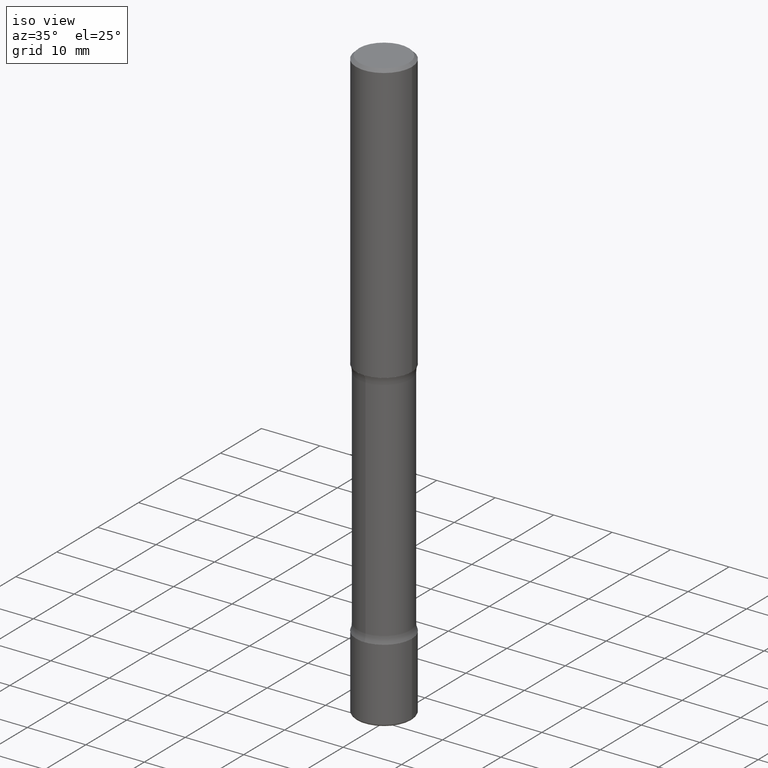
[diagram: clean part render]
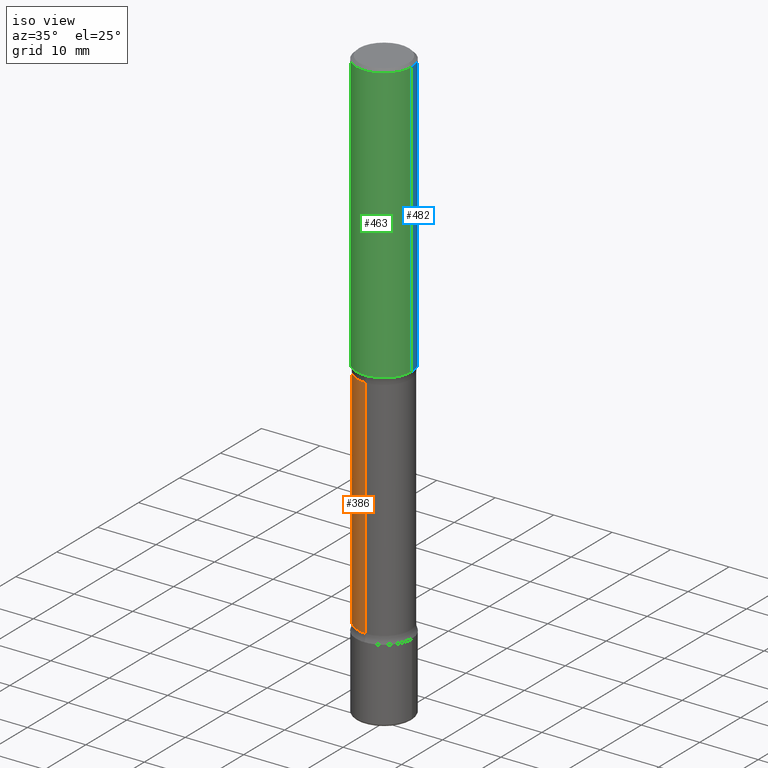
[diagram: same view with three faces highlighted in distinct colors, each labeled with its STEP entity id]
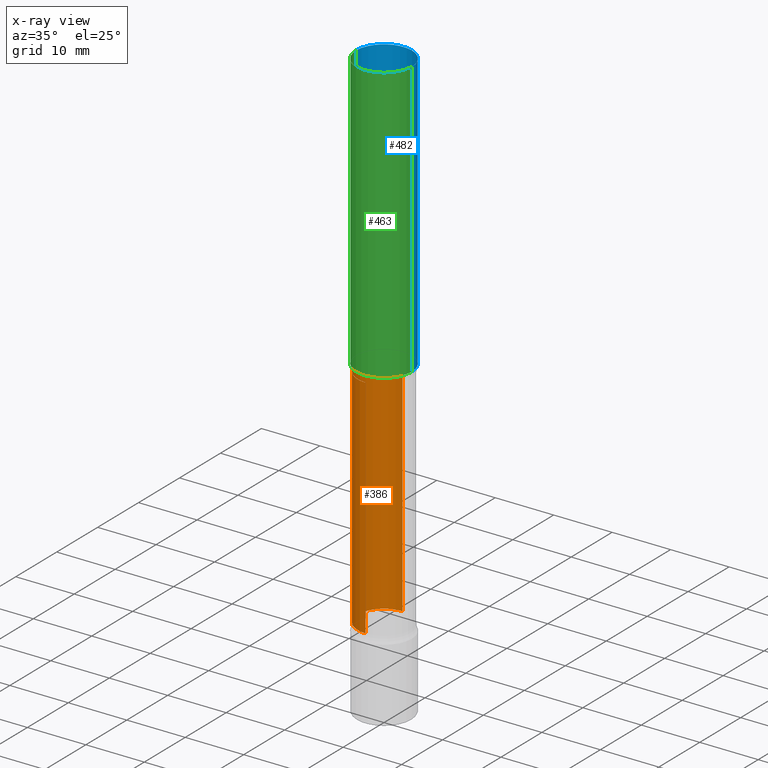
[diagram: x-ray of the same camera — body ghosted, the three highlighted faces saturated]
A machine part, iso view with three faces highlighted in distinct colors.
The next image is the same camera in x-ray (body ghosted, the three faces saturated) — at least one of them is partly hidden behind the body in this view.
Their STEP definitions:

[orange] entity #386 — the highlighted cylindrical surface (edge-blend (fillet) strip) has radius 4.5085 mm, axis along (0, -0, -1).
#5 = EDGE_CURVE ( 'NONE', #248, #14, #41, .T. ) ;
#14 = VERTEX_POINT ( 'NONE', #128 ) ;
#25 = LINE ( 'NONE', #58, #299 ) ;
#26 = ORIENTED_EDGE ( 'NONE', *, *, #5, .T. ) ;
#31 = VECTOR ( 'NONE', #87, 39.37007874015748143 ) ;
#41 = CIRCLE ( 'NONE', #177, 0.1775000000000003242 ) ;
#45 = LINE ( 'NONE', #218, #31 ) ;
#47 = DIRECTION ( 'NONE',  ( 2.612387241267746127E-29, -3.252444639397522477E-15, -1.000000000000000000 ) ) ;
#58 = CARTESIAN_POINT ( 'NONE',  ( 1.239475875289412093E-15, 0.1774999999999863354, -4.000000000000000888 ) ) ;
#75 = VERTEX_POINT ( 'NONE', #533 ) ;
#87 = DIRECTION ( 'NONE',  ( 2.612387241267746127E-29, -3.252444639397522083E-15, -1.000000000000000000 ) ) ;
#106 = DIRECTION ( 'NONE',  ( 2.612387241267746127E-29, -3.252444639397522083E-15, -1.000000000000000000 ) ) ;
#124 = ORIENTED_EDGE ( 'NONE', *, *, #152, .F. ) ;
#128 = CARTESIAN_POINT ( 'NONE',  ( 1.239475875289358844E-15, 0.1774999999999932188, -1.923989794855664126 ) ) ;
#139 = AXIS2_PLACEMENT_3D ( 'NONE', #270, #283, #465 ) ;
#152 = EDGE_CURVE ( 'NONE', #75, #429, #288, .T. ) ;
#167 = CARTESIAN_POINT ( 'NONE',  ( 4.441991869621149927E-29, -7.094298742593522572E-15, -1.923989794855663460 ) ) ;
#172 = CARTESIAN_POINT ( 'NONE',  ( 8.431160506614718513E-29, -1.206084809028752233E-14, -3.451010205144336762 ) ) ;
#177 = AXIS2_PLACEMENT_3D ( 'NONE', #167, #352, #251 ) ;
#179 = CARTESIAN_POINT ( 'NONE',  ( 1.239475875289396118E-15, 0.1774999999999878897, -3.451010205144337206 ) ) ;
#180 = AXIS2_PLACEMENT_3D ( 'NONE', #172, #47, #314 ) ;
#218 = CARTESIAN_POINT ( 'NONE',  ( -1.217738394604349018E-15, -0.1775000000000139799, -4.000000000000000000 ) ) ;
#239 = EDGE_CURVE ( 'NONE', #248, #75, #45, .T. ) ;
#248 = VERTEX_POINT ( 'NONE', #257 ) ;
#251 = DIRECTION ( 'NONE',  ( 6.982962677686265133E-15, 1.000000000000000000, -3.078138584410432002E-15 ) ) ;
#257 = CARTESIAN_POINT ( 'NONE',  ( -1.252040884593263284E-15, -0.1775000000000074296, -1.923989794855663016 ) ) ;
#270 = CARTESIAN_POINT ( 'NONE',  ( 9.865334442281852273E-29, -1.384640700564977196E-14, -4.000000000000000888 ) ) ;
#271 = EDGE_LOOP ( 'NONE', ( #287, #26, #336, #124 ) ) ;
#283 = DIRECTION ( 'NONE',  ( 2.612387241267746127E-29, -3.252444639397522477E-15, -1.000000000000000000 ) ) ;
#287 = ORIENTED_EDGE ( 'NONE', *, *, #239, .F. ) ;
#288 = CIRCLE ( 'NONE', #180, 0.1774999999999999634 ) ;
#299 = VECTOR ( 'NONE', #106, 39.37007874015748143 ) ;
#314 = DIRECTION ( 'NONE',  ( 6.982962677686265922E-15, 1.000000000000000000, -3.078138584410437918E-15 ) ) ;
#322 = FACE_OUTER_BOUND ( 'NONE', #271, .T. ) ;
#336 = ORIENTED_EDGE ( 'NONE', *, *, #363, .T. ) ;
#352 = DIRECTION ( 'NONE',  ( 2.612387241267746127E-29, -3.252444639397522477E-15, -1.000000000000000000 ) ) ;
#363 = EDGE_CURVE ( 'NONE', #14, #429, #25, .T. ) ;
#386 = ADVANCED_FACE ( 'NONE', ( #322 ), #493, .T. ) ;
#429 = VERTEX_POINT ( 'NONE', #179 ) ;
#465 = DIRECTION ( 'NONE',  ( 6.982962677686266711E-15, 1.000000000000000000, -3.078138584410434763E-15 ) ) ;
#493 = CYLINDRICAL_SURFACE ( 'NONE', #139, 0.1775000000000001577 ) ;
#533 = CARTESIAN_POINT ( 'NONE',  ( -1.252040884593219502E-15, -0.1775000000000120093, -3.451010205144335874 ) ) ;

[blue] entity #482 — the highlighted cylindrical surface (edge-blend (fillet) strip) has radius 4.7625 mm, axis along (-0, 0, 1).
#4 = DIRECTION ( 'NONE',  ( -2.445468806185136597E-29, 3.491481338843145583E-15, 1.000000000000000000 ) ) ;
#8 = LINE ( 'NONE', #174, #49 ) ;
#11 = CIRCLE ( 'NONE', #415, 0.1875000000000001943 ) ;
#42 = ORIENTED_EDGE ( 'NONE', *, *, #249, .F. ) ;
#49 = VECTOR ( 'NONE', #212, 39.37007874015748143 ) ;
#64 = CIRCLE ( 'NONE', #156, 0.1874999999999999722 ) ;
#66 = DIRECTION ( 'NONE',  ( -2.445468806185136877E-29, 3.491481338843145188E-15, 1.000000000000000000 ) ) ;
#76 = CARTESIAN_POINT ( 'NONE',  ( -0.1875000000000001388, -1.975910939003690393E-15, -1.874999999999999778 ) ) ;
#103 = ORIENTED_EDGE ( 'NONE', *, *, #211, .F. ) ;
#126 = ORIENTED_EDGE ( 'NONE', *, *, #181, .T. ) ;
#156 = AXIS2_PLACEMENT_3D ( 'NONE', #484, #311, #255 ) ;
#163 = CYLINDRICAL_SURFACE ( 'NONE', #468, 0.1875000000000000833 ) ;
#174 = CARTESIAN_POINT ( 'NONE',  ( 0.1875000000000000833, -1.309305502066175600E-15, 9.142831454617383816E-30 ) ) ;
#181 = EDGE_CURVE ( 'NONE', #504, #479, #11, .T. ) ;
#202 = CARTESIAN_POINT ( 'NONE',  ( 0.000000000000000000, 0.000000000000000000, 0.000000000000000000 ) ) ;
#211 = EDGE_CURVE ( 'NONE', #265, #380, #64, .T. ) ;
#212 = DIRECTION ( 'NONE',  ( -2.445468806185136877E-29, 3.491481338843145188E-15, 1.000000000000000000 ) ) ;
#220 = CARTESIAN_POINT ( 'NONE',  ( 4.585254011597130558E-29, -6.546527510330897918E-15, -1.874999999999999778 ) ) ;
#228 = CARTESIAN_POINT ( 'NONE',  ( -0.1874999999999999722, 1.239475875289311710E-15, -0.02000000000000004205 ) ) ;
#249 = EDGE_CURVE ( 'NONE', #504, #265, #8, .T. ) ;
#250 = DIRECTION ( 'NONE',  ( 1.000000000000000000, -6.982962677686266711E-15, 4.876176775795935793E-29 ) ) ;
#255 = DIRECTION ( 'NONE',  ( 1.000000000000000000, -6.982962677686266711E-15, 0.000000000000000000 ) ) ;
#265 = VERTEX_POINT ( 'NONE', #402 ) ;
#294 = EDGE_CURVE ( 'NONE', #479, #380, #456, .T. ) ;
#311 = DIRECTION ( 'NONE',  ( -2.445468806185136597E-29, 3.491481338843145583E-15, 1.000000000000000000 ) ) ;
#329 = CARTESIAN_POINT ( 'NONE',  ( -0.1875000000000000833, 1.332267629550188440E-15, -9.223003294227952194E-30 ) ) ;
#347 = VECTOR ( 'NONE', #66, 39.37007874015748143 ) ;
#368 = DIRECTION ( 'NONE',  ( 1.000000000000000000, -6.982962677686265922E-15, 0.000000000000000000 ) ) ;
#380 = VERTEX_POINT ( 'NONE', #228 ) ;
#393 = FACE_OUTER_BOUND ( 'NONE', #501, .T. ) ;
#402 = CARTESIAN_POINT ( 'NONE',  ( 0.1874999999999999722, -1.356173001359025269E-15, -0.02000000000000004205 ) ) ;
#415 = AXIS2_PLACEMENT_3D ( 'NONE', #220, #4, #368 ) ;
#456 = LINE ( 'NONE', #329, #347 ) ;
#468 = AXIS2_PLACEMENT_3D ( 'NONE', #202, #551, #250 ) ;
#479 = VERTEX_POINT ( 'NONE', #76 ) ;
#482 = ADVANCED_FACE ( 'NONE', ( #393 ), #163, .T. ) ;
#484 = CARTESIAN_POINT ( 'NONE',  ( 4.890937612370283668E-31, -6.982962677686305168E-17, -0.02000000000000004205 ) ) ;
#501 = EDGE_LOOP ( 'NONE', ( #126, #528, #103, #42 ) ) ;
#504 = VERTEX_POINT ( 'NONE', #553 ) ;
#528 = ORIENTED_EDGE ( 'NONE', *, *, #294, .T. ) ;
#551 = DIRECTION ( 'NONE',  ( -2.445468806185136597E-29, 3.491481338843145583E-15, 1.000000000000000000 ) ) ;
#553 = CARTESIAN_POINT ( 'NONE',  ( 0.1875000000000001943, -7.855833012397073715E-15, -1.874999999999999778 ) ) ;

[green] entity #463 — the highlighted cylindrical surface (edge-blend (fillet) strip) has radius 4.7625 mm, axis along (-0, 0, 1).
#8 = LINE ( 'NONE', #174, #49 ) ;
#37 = CARTESIAN_POINT ( 'NONE',  ( 4.890937612370283668E-31, -6.982962677686305168E-17, -0.02000000000000004205 ) ) ;
#49 = VECTOR ( 'NONE', #212, 39.37007874015748143 ) ;
#66 = DIRECTION ( 'NONE',  ( -2.445468806185136877E-29, 3.491481338843145188E-15, 1.000000000000000000 ) ) ;
#76 = CARTESIAN_POINT ( 'NONE',  ( -0.1875000000000001388, -1.975910939003690393E-15, -1.874999999999999778 ) ) ;
#97 = AXIS2_PLACEMENT_3D ( 'NONE', #37, #122, #478 ) ;
#111 = DIRECTION ( 'NONE',  ( 1.000000000000000000, -6.982962677686265922E-15, 0.000000000000000000 ) ) ;
#122 = DIRECTION ( 'NONE',  ( -2.445468806185136597E-29, 3.491481338843145583E-15, 1.000000000000000000 ) ) ;
#146 = ORIENTED_EDGE ( 'NONE', *, *, #337, .T. ) ;
#174 = CARTESIAN_POINT ( 'NONE',  ( 0.1875000000000000833, -1.309305502066175600E-15, 9.142831454617383816E-30 ) ) ;
#191 = EDGE_LOOP ( 'NONE', ( #556, #146, #538, #332 ) ) ;
#212 = DIRECTION ( 'NONE',  ( -2.445468806185136877E-29, 3.491481338843145188E-15, 1.000000000000000000 ) ) ;
#228 = CARTESIAN_POINT ( 'NONE',  ( -0.1874999999999999722, 1.239475875289311710E-15, -0.02000000000000004205 ) ) ;
#249 = EDGE_CURVE ( 'NONE', #504, #265, #8, .T. ) ;
#254 = AXIS2_PLACEMENT_3D ( 'NONE', #280, #535, #111 ) ;
#265 = VERTEX_POINT ( 'NONE', #402 ) ;
#280 = CARTESIAN_POINT ( 'NONE',  ( 4.585254011597130558E-29, -6.546527510330897918E-15, -1.874999999999999778 ) ) ;
#294 = EDGE_CURVE ( 'NONE', #479, #380, #456, .T. ) ;
#329 = CARTESIAN_POINT ( 'NONE',  ( -0.1875000000000000833, 1.332267629550188440E-15, -9.223003294227952194E-30 ) ) ;
#332 = ORIENTED_EDGE ( 'NONE', *, *, #489, .F. ) ;
#334 = DIRECTION ( 'NONE',  ( 1.000000000000000000, -6.982962677686266711E-15, 4.876176775795935793E-29 ) ) ;
#337 = EDGE_CURVE ( 'NONE', #479, #504, #371, .T. ) ;
#341 = CYLINDRICAL_SURFACE ( 'NONE', #346, 0.1875000000000000833 ) ;
#346 = AXIS2_PLACEMENT_3D ( 'NONE', #555, #435, #334 ) ;
#347 = VECTOR ( 'NONE', #66, 39.37007874015748143 ) ;
#371 = CIRCLE ( 'NONE', #254, 0.1875000000000001943 ) ;
#380 = VERTEX_POINT ( 'NONE', #228 ) ;
#396 = FACE_OUTER_BOUND ( 'NONE', #191, .T. ) ;
#402 = CARTESIAN_POINT ( 'NONE',  ( 0.1874999999999999722, -1.356173001359025269E-15, -0.02000000000000004205 ) ) ;
#435 = DIRECTION ( 'NONE',  ( -2.445468806185136597E-29, 3.491481338843145583E-15, 1.000000000000000000 ) ) ;
#456 = LINE ( 'NONE', #329, #347 ) ;
#463 = ADVANCED_FACE ( 'NONE', ( #396 ), #341, .T. ) ;
#478 = DIRECTION ( 'NONE',  ( 1.000000000000000000, -6.982962677686266711E-15, 0.000000000000000000 ) ) ;
#479 = VERTEX_POINT ( 'NONE', #76 ) ;
#489 = EDGE_CURVE ( 'NONE', #380, #265, #532, .T. ) ;
#504 = VERTEX_POINT ( 'NONE', #553 ) ;
#532 = CIRCLE ( 'NONE', #97, 0.1874999999999999722 ) ;
#535 = DIRECTION ( 'NONE',  ( -2.445468806185136597E-29, 3.491481338843145583E-15, 1.000000000000000000 ) ) ;
#538 = ORIENTED_EDGE ( 'NONE', *, *, #249, .T. ) ;
#553 = CARTESIAN_POINT ( 'NONE',  ( 0.1875000000000001943, -7.855833012397073715E-15, -1.874999999999999778 ) ) ;
#555 = CARTESIAN_POINT ( 'NONE',  ( 0.000000000000000000, 0.000000000000000000, 0.000000000000000000 ) ) ;
#556 = ORIENTED_EDGE ( 'NONE', *, *, #294, .F. ) ;